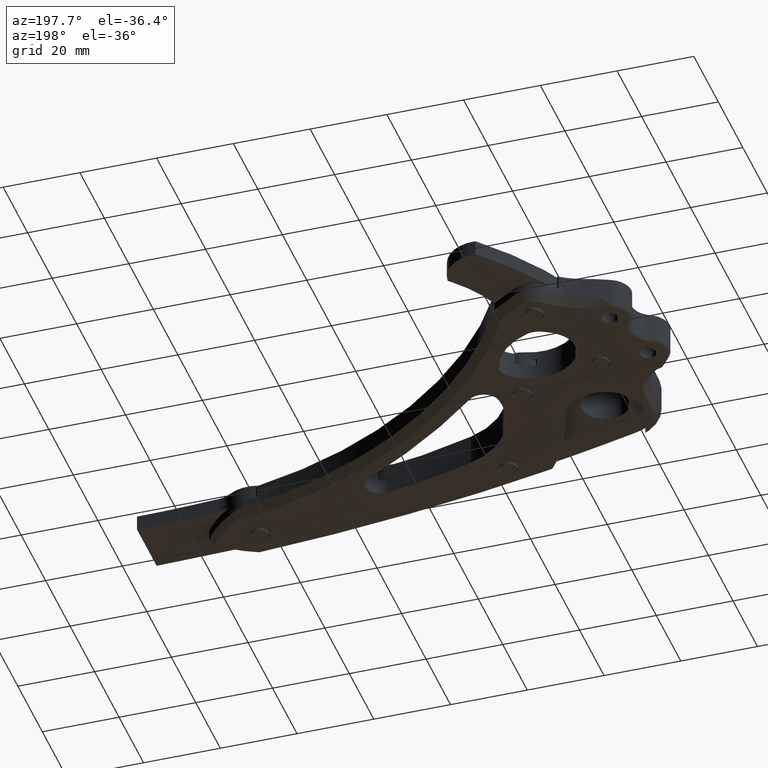
[diagram: clean part render]
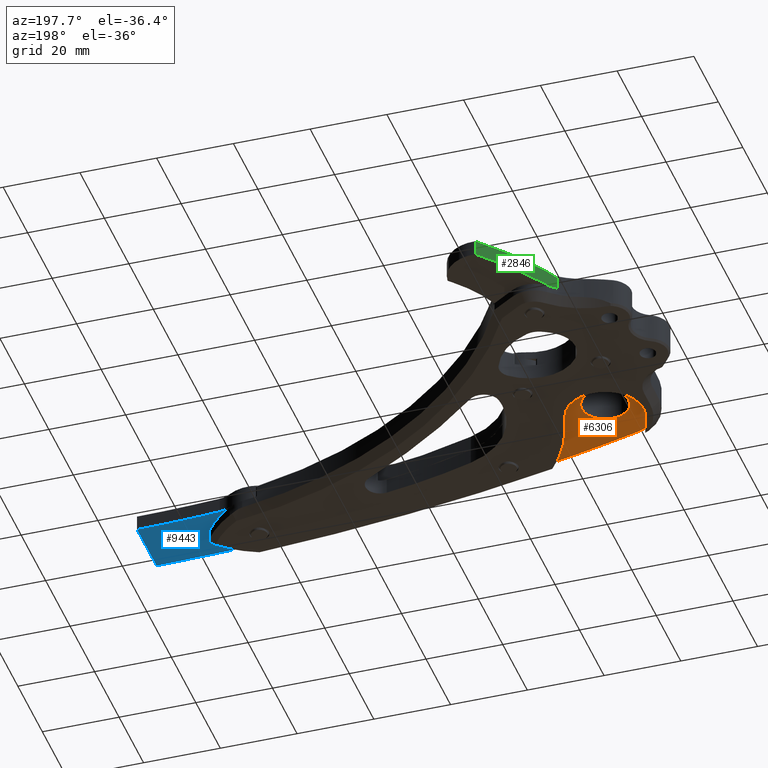
[diagram: same view with three faces highlighted in distinct colors, each labeled with its STEP entity id]
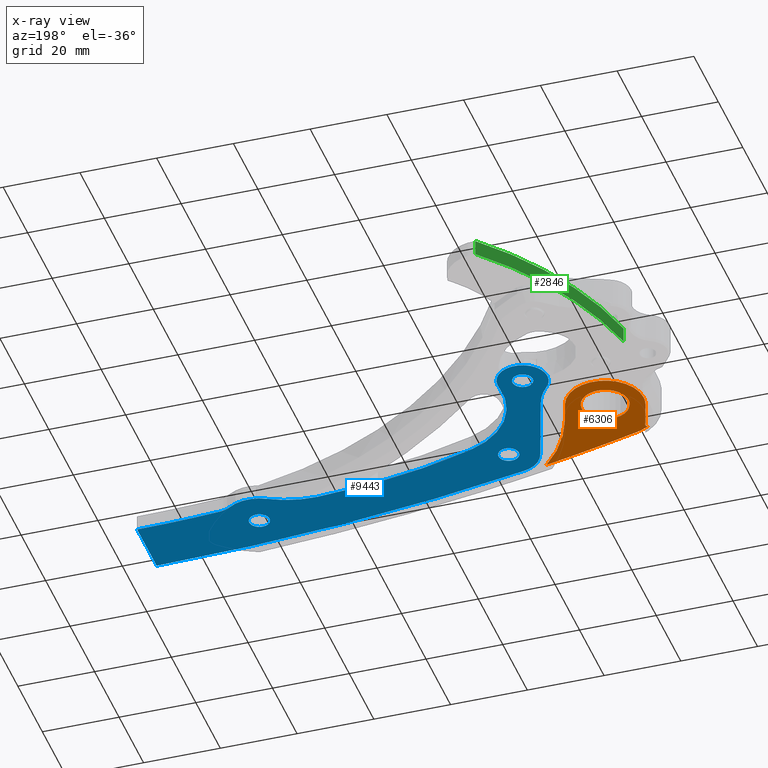
[diagram: x-ray of the same camera — body ghosted, the three highlighted faces saturated]
A machine part, auxiliary view with three faces highlighted in distinct colors.
The next image is the same camera in x-ray (body ghosted, the three faces saturated) — at least one of them is partly hidden behind the body in this view.
Their STEP definitions:

[orange] entity #6306 — the highlighted planar face has unit normal (0, 0, -1).
#3 = AXIS2_PLACEMENT_3D ( 'NONE', #8015, #2750, #7243 ) ;
#106 = VERTEX_POINT ( 'NONE', #9611 ) ;
#174 = LINE ( 'NONE', #439, #3489 ) ;
#179 = PLANE ( 'NONE',  #3609 ) ;
#198 = ORIENTED_EDGE ( 'NONE', *, *, #8634, .T. ) ;
#228 = LINE ( 'NONE', #614, #3995 ) ;
#334 = EDGE_CURVE ( 'NONE', #106, #4261, #9495, .T. ) ;
#353 = EDGE_CURVE ( 'NONE', #9379, #106, #174, .T. ) ;
#439 = CARTESIAN_POINT ( 'NONE',  ( 0.3744316993288013262, 0.1216602340058868803, 0.1377952755905512972 ) ) ;
#445 = EDGE_LOOP ( 'NONE', ( #7776, #198, #4285, #1633, #8875, #1286, #4212, #5405, #6687 ) ) ;
#614 = CARTESIAN_POINT ( 'NONE',  ( -0.3744316993288016038, -0.1216602340058825088, 0.1377952755905512972 ) ) ;
#640 = VERTEX_POINT ( 'NONE', #6355 ) ;
#973 = FACE_BOUND ( 'NONE', #3605, .T. ) ;
#1083 = CARTESIAN_POINT ( 'NONE',  ( -0.3744316993288016038, -0.1216602340058825088, 0.1377952755905512972 ) ) ;
#1238 = DIRECTION ( 'NONE',  ( -1.000000000000000000, 0.0000000000000000000, 0.0000000000000000000 ) ) ;
#1273 = AXIS2_PLACEMENT_3D ( 'NONE', #5564, #1808, #1881 ) ;
#1286 = ORIENTED_EDGE ( 'NONE', *, *, #4424, .T. ) ;
#1366 = DIRECTION ( 'NONE',  ( 0.0000000000000000000, 0.0000000000000000000, -1.000000000000000000 ) ) ;
#1421 = DIRECTION ( 'NONE',  ( 0.0000000000000000000, 0.0000000000000000000, -1.000000000000000000 ) ) ;
#1538 = DIRECTION ( 'NONE',  ( -0.3090169943749412895, 0.9510565162951555296, 0.0000000000000000000 ) ) ;
#1633 = ORIENTED_EDGE ( 'NONE', *, *, #9436, .T. ) ;
#1635 = EDGE_CURVE ( 'NONE', #3416, #2544, #7337, .T. ) ;
#1808 = DIRECTION ( 'NONE',  ( 0.0000000000000000000, 0.0000000000000000000, 1.000000000000000000 ) ) ;
#1881 = DIRECTION ( 'NONE',  ( -1.000000000000000000, 0.0000000000000000000, 0.0000000000000000000 ) ) ;
#1912 = VERTEX_POINT ( 'NONE', #5493 ) ;
#2421 = CARTESIAN_POINT ( 'NONE',  ( 0.8619392570489834426, -0.7576723516187694463, 0.1377952755905512972 ) ) ;
#2425 = CARTESIAN_POINT ( 'NONE',  ( 1.957320660448124139, 0.3461989804992516850, 0.1377952755905512972 ) ) ;
#2544 = VERTEX_POINT ( 'NONE', #8874 ) ;
#2637 = CARTESIAN_POINT ( 'NONE',  ( 0.0000000000000000000, 0.0000000000000000000, 0.1377952755905512972 ) ) ;
#2750 = DIRECTION ( 'NONE',  ( -0.0000000000000000000, -0.0000000000000000000, 1.000000000000000000 ) ) ;
#2791 = DIRECTION ( 'NONE',  ( -1.000000000000000000, -3.388131789017198347E-21, 0.0000000000000000000 ) ) ;
#2860 = AXIS2_PLACEMENT_3D ( 'NONE', #5731, #8339, #2791 ) ;
#2948 = VERTEX_POINT ( 'NONE', #3523 ) ;
#3033 = DIRECTION ( 'NONE',  ( -0.0000000000000000000, 0.0000000000000000000, -1.000000000000000000 ) ) ;
#3359 = VERTEX_POINT ( 'NONE', #1083 ) ;
#3416 = VERTEX_POINT ( 'NONE', #7738 ) ;
#3489 = VECTOR ( 'NONE', #3505, 39.37007874015748143 ) ;
#3505 = DIRECTION ( 'NONE',  ( 0.3090169943749421222, -0.9510565162951553075, 0.0000000000000000000 ) ) ;
#3523 = CARTESIAN_POINT ( 'NONE',  ( -0.2711995675692392416, -0.4393760664298007046, 0.1377952755905512972 ) ) ;
#3605 = EDGE_LOOP ( 'NONE', ( #4074, #9470 ) ) ;
#3609 = AXIS2_PLACEMENT_3D ( 'NONE', #2425, #3033, #9664 ) ;
#3995 = VECTOR ( 'NONE', #1538, 39.37007874015748854 ) ;
#4038 = CIRCLE ( 'NONE', #4610, 19.68503937007875848 ) ;
#4074 = ORIENTED_EDGE ( 'NONE', *, *, #9278, .F. ) ;
#4212 = ORIENTED_EDGE ( 'NONE', *, *, #353, .T. ) ;
#4257 = DIRECTION ( 'NONE',  ( 0.0000000000000000000, 0.0000000000000000000, -1.000000000000000000 ) ) ;
#4261 = VERTEX_POINT ( 'NONE', #9270 ) ;
#4285 = ORIENTED_EDGE ( 'NONE', *, *, #9070, .T. ) ;
#4396 = EDGE_CURVE ( 'NONE', #3359, #640, #6093, .T. ) ;
#4424 = EDGE_CURVE ( 'NONE', #640, #9379, #4573, .T. ) ;
#4573 = CIRCLE ( 'NONE', #8790, 0.3937007874015751030 ) ;
#4603 = CIRCLE ( 'NONE', #3, 0.01968503937007875723 ) ;
#4610 = AXIS2_PLACEMENT_3D ( 'NONE', #8938, #1421, #5971 ) ;
#4818 = AXIS2_PLACEMENT_3D ( 'NONE', #8944, #5019, #7097 ) ;
#5019 = DIRECTION ( 'NONE',  ( 0.0000000000000000000, 0.0000000000000000000, -1.000000000000000000 ) ) ;
#5114 = AXIS2_PLACEMENT_3D ( 'NONE', #2421, #5497, #1238 ) ;
#5405 = ORIENTED_EDGE ( 'NONE', *, *, #334, .T. ) ;
#5493 = CARTESIAN_POINT ( 'NONE',  ( 0.8577675642549055235, -0.7769102765129314303, 0.1377952755905512972 ) ) ;
#5497 = DIRECTION ( 'NONE',  ( -0.0000000000000000000, -0.0000000000000000000, 1.000000000000000000 ) ) ;
#5547 = CIRCLE ( 'NONE', #5114, 0.01968503937007875723 ) ;
#5564 = CARTESIAN_POINT ( 'NONE',  ( 1.957320660448124139, 0.3461989804992516850, 0.1377952755905512972 ) ) ;
#5731 = CARTESIAN_POINT ( 'NONE',  ( 0.0000000000000000000, 0.0000000000000000000, 0.1377952755905512972 ) ) ;
#5767 = VERTEX_POINT ( 'NONE', #6400 ) ;
#5921 = EDGE_CURVE ( 'NONE', #1912, #9583, #4038, .T. ) ;
#5971 = DIRECTION ( 'NONE',  ( -1.000000000000000000, 0.0000000000000000000, 0.0000000000000000000 ) ) ;
#6093 = CIRCLE ( 'NONE', #2860, 0.3937007874015751030 ) ;
#6306 = ADVANCED_FACE ( 'NONE', ( #973, #6981 ), #179, .T. ) ;
#6332 = DIRECTION ( 'NONE',  ( 0.0000000000000000000, 0.0000000000000000000, -1.000000000000000000 ) ) ;
#6355 = CARTESIAN_POINT ( 'NONE',  ( -0.3937007874015747699, -1.333910153156377246E-21, 0.1377952755905512972 ) ) ;
#6400 = CARTESIAN_POINT ( 'NONE',  ( -0.3006589729999643024, -0.4619575625052826928, 0.1377952755905512972 ) ) ;
#6414 = CARTESIAN_POINT ( 'NONE',  ( 0.0000000000000000000, 0.0000000000000000000, 0.1377952755905512972 ) ) ;
#6687 = ORIENTED_EDGE ( 'NONE', *, *, #8379, .T. ) ;
#6981 = FACE_OUTER_BOUND ( 'NONE', #445, .T. ) ;
#7097 = DIRECTION ( 'NONE',  ( -1.000000000000000000, -3.388131789017198723E-21, 0.0000000000000000000 ) ) ;
#7152 = DIRECTION ( 'NONE',  ( -1.000000000000000000, -3.388131789017198723E-21, 0.0000000000000000000 ) ) ;
#7243 = DIRECTION ( 'NONE',  ( -1.000000000000000000, 0.0000000000000000000, 0.0000000000000000000 ) ) ;
#7337 = CIRCLE ( 'NONE', #4818, 0.2401574803149608139 ) ;
#7738 = CARTESIAN_POINT ( 'NONE',  ( -0.2401574803149606196, 2.940999527070757363E-17, 0.1377952755905512972 ) ) ;
#7776 = ORIENTED_EDGE ( 'NONE', *, *, #5921, .T. ) ;
#8015 = CARTESIAN_POINT ( 'NONE',  ( -0.2899211525356799046, -0.4454590781300942215, 0.1377952755905512972 ) ) ;
#8150 = DIRECTION ( 'NONE',  ( -1.000000000000000000, -3.388131789017198347E-21, 0.0000000000000000000 ) ) ;
#8291 = AXIS2_PLACEMENT_3D ( 'NONE', #2637, #6332, #8576 ) ;
#8339 = DIRECTION ( 'NONE',  ( 0.0000000000000000000, 0.0000000000000000000, -1.000000000000000000 ) ) ;
#8379 = EDGE_CURVE ( 'NONE', #4261, #1912, #5547, .T. ) ;
#8392 = CIRCLE ( 'NONE', #8291, 0.5511811023622052996 ) ;
#8576 = DIRECTION ( 'NONE',  ( -1.000000000000000000, -3.388131789017198723E-21, 0.0000000000000000000 ) ) ;
#8607 = AXIS2_PLACEMENT_3D ( 'NONE', #6414, #1366, #7152 ) ;
#8634 = EDGE_CURVE ( 'NONE', #9583, #5767, #8392, .T. ) ;
#8790 = AXIS2_PLACEMENT_3D ( 'NONE', #9398, #4257, #8150 ) ;
#8874 = CARTESIAN_POINT ( 'NONE',  ( 0.2401574803149606196, 8.136851934253901838E-22, 0.1377952755905512972 ) ) ;
#8875 = ORIENTED_EDGE ( 'NONE', *, *, #4396, .T. ) ;
#8938 = CARTESIAN_POINT ( 'NONE',  ( 5.029460358332304537, 18.46101461764844487, 0.1377952755905512972 ) ) ;
#8944 = CARTESIAN_POINT ( 'NONE',  ( 0.0000000000000000000, 0.0000000000000000000, 0.1377952755905512972 ) ) ;
#9006 = CARTESIAN_POINT ( 'NONE',  ( 0.3744316993288013262, 0.1216602340058868803, 0.1377952755905512972 ) ) ;
#9070 = EDGE_CURVE ( 'NONE', #5767, #2948, #4603, .T. ) ;
#9091 = CARTESIAN_POINT ( 'NONE',  ( -0.1448815623168710487, -0.5317987782064161895, 0.1377952755905512972 ) ) ;
#9270 = CARTESIAN_POINT ( 'NONE',  ( 0.8480736696641871797, -0.7716454064557027870, 0.1377952755905512972 ) ) ;
#9278 = EDGE_CURVE ( 'NONE', #2544, #3416, #9431, .T. ) ;
#9379 = VERTEX_POINT ( 'NONE', #9006 ) ;
#9398 = CARTESIAN_POINT ( 'NONE',  ( 0.0000000000000000000, 0.0000000000000000000, 0.1377952755905512972 ) ) ;
#9431 = CIRCLE ( 'NONE', #8607, 0.2401574803149608139 ) ;
#9436 = EDGE_CURVE ( 'NONE', #2948, #3359, #228, .T. ) ;
#9470 = ORIENTED_EDGE ( 'NONE', *, *, #1635, .F. ) ;
#9495 = CIRCLE ( 'NONE', #1273, 1.574803149606300412 ) ;
#9583 = VERTEX_POINT ( 'NONE', #9091 ) ;
#9611 = CARTESIAN_POINT ( 'NONE',  ( 0.4595938631329188895, -0.1404419555242772677, 0.1377952755905512972 ) ) ;
#9664 = DIRECTION ( 'NONE',  ( -1.000000000000000000, -3.388131789017198347E-21, 0.0000000000000000000 ) ) ;

[blue] entity #9443 — the highlighted planar face has unit normal (0, 0, -1).
#2 = FACE_OUTER_BOUND ( 'NONE', #8122, .T. ) ;
#12 = CARTESIAN_POINT ( 'NONE',  ( 5.039771616311220725, 11.21441482659597355, 0.07874015748031502893 ) ) ;
#156 = DIRECTION ( 'NONE',  ( -1.000000000000000000, 0.0000000000000000000, 0.0000000000000000000 ) ) ;
#227 = DIRECTION ( 'NONE',  ( -0.0000000000000000000, -0.0000000000000000000, 1.000000000000000000 ) ) ;
#240 = DIRECTION ( 'NONE',  ( 0.0000000000000000000, 0.0000000000000000000, -1.000000000000000000 ) ) ;
#272 = DIRECTION ( 'NONE',  ( 1.000000000000000000, 0.0000000000000000000, 0.0000000000000000000 ) ) ;
#330 = DIRECTION ( 'NONE',  ( -0.0000000000000000000, -0.0000000000000000000, 1.000000000000000000 ) ) ;
#371 = CARTESIAN_POINT ( 'NONE',  ( 4.153562445621881594, -0.3264127545579053602, 0.07874015748031502893 ) ) ;
#502 = AXIS2_PLACEMENT_3D ( 'NONE', #5464, #7894, #8591 ) ;
#503 = DIRECTION ( 'NONE',  ( 0.0000000000000000000, 0.0000000000000000000, -1.000000000000000000 ) ) ;
#569 = DIRECTION ( 'NONE',  ( 0.0000000000000000000, 0.0000000000000000000, -1.000000000000000000 ) ) ;
#612 = CARTESIAN_POINT ( 'NONE',  ( 1.095826336180402150, -0.8269945408872719783, 0.07874015748031502893 ) ) ;
#623 = CARTESIAN_POINT ( 'NONE',  ( 0.7629952931989970599, 0.5923259528790497663, 0.07874015748031502893 ) ) ;
#649 = ORIENTED_EDGE ( 'NONE', *, *, #3704, .F. ) ;
#652 = CARTESIAN_POINT ( 'NONE',  ( 0.4683837045600568461, 0.4212095664917691051, 0.07874015748031502893 ) ) ;
#687 = ORIENTED_EDGE ( 'NONE', *, *, #1075, .F. ) ;
#713 = EDGE_CURVE ( 'NONE', #4402, #6791, #5362, .T. ) ;
#737 = EDGE_CURVE ( 'NONE', #8461, #6265, #7372, .T. ) ;
#756 = DIRECTION ( 'NONE',  ( 1.000000000000000000, 0.0000000000000000000, 0.0000000000000000000 ) ) ;
#781 = AXIS2_PLACEMENT_3D ( 'NONE', #5984, #6543, #272 ) ;
#815 = DIRECTION ( 'NONE',  ( -0.0000000000000000000, -0.0000000000000000000, 1.000000000000000000 ) ) ;
#839 = CARTESIAN_POINT ( 'NONE',  ( 1.157573939414331843, -0.5242240083958442654, 0.07874015748031502893 ) ) ;
#972 = CARTESIAN_POINT ( 'NONE',  ( 3.300342611646471802, 5.284223087146219910, 0.07874015748031502893 ) ) ;
#983 = ORIENTED_EDGE ( 'NONE', *, *, #6099, .F. ) ;
#1062 = VECTOR ( 'NONE', #5525, 39.37007874015748854 ) ;
#1064 = DIRECTION ( 'NONE',  ( 1.000000000000000000, 0.0000000000000000000, 0.0000000000000000000 ) ) ;
#1075 = EDGE_CURVE ( 'NONE', #1910, #4050, #3348, .T. ) ;
#1133 = EDGE_LOOP ( 'NONE', ( #6721, #8336 ) ) ;
#1157 = EDGE_CURVE ( 'NONE', #4758, #4402, #6389, .T. ) ;
#1174 = CARTESIAN_POINT ( 'NONE',  ( 4.135476544179243596, -0.5619398480508436267, 0.07874015748031502893 ) ) ;
#1210 = AXIS2_PLACEMENT_3D ( 'NONE', #839, #5255, #4330 ) ;
#1303 = CARTESIAN_POINT ( 'NONE',  ( 3.178165895297007104, 0.3070171716017278118, 0.07874015748031502893 ) ) ;
#1385 = EDGE_CURVE ( 'NONE', #6265, #4758, #4981, .T. ) ;
#1392 = EDGE_CURVE ( 'NONE', #9245, #7042, #7224, .T. ) ;
#1405 = AXIS2_PLACEMENT_3D ( 'NONE', #972, #5641, #1502 ) ;
#1502 = DIRECTION ( 'NONE',  ( 1.000000000000000000, 0.0000000000000000000, 0.0000000000000000000 ) ) ;
#1546 = CARTESIAN_POINT ( 'NONE',  ( 3.631300535526105211, -0.5014625227949655040, 0.07874015748031502893 ) ) ;
#1627 = ORIENTED_EDGE ( 'NONE', *, *, #8525, .F. ) ;
#1698 = DIRECTION ( 'NONE',  ( 0.0000000000000000000, 0.0000000000000000000, -1.000000000000000000 ) ) ;
#1784 = CIRCLE ( 'NONE', #4481, 0.9268065701252465871 ) ;
#1831 = AXIS2_PLACEMENT_3D ( 'NONE', #8438, #3757, #1907 ) ;
#1834 = ORIENTED_EDGE ( 'NONE', *, *, #5107, .F. ) ;
#1865 = DIRECTION ( 'NONE',  ( -0.0000000000000000000, -0.0000000000000000000, 1.000000000000000000 ) ) ;
#1907 = DIRECTION ( 'NONE',  ( 1.000000000000000000, 0.0000000000000000000, 0.0000000000000000000 ) ) ;
#1910 = VERTEX_POINT ( 'NONE', #3738 ) ;
#2004 = CARTESIAN_POINT ( 'NONE',  ( 0.6586645845375798114, 0.5923259528790497663, 0.07874015748031502893 ) ) ;
#2008 = FACE_BOUND ( 'NONE', #4900, .T. ) ;
#2041 = CARTESIAN_POINT ( 'NONE',  ( 3.809921704141099319, -0.8201571777470070268, 0.07874015748031502893 ) ) ;
#2066 = DIRECTION ( 'NONE',  ( 1.000000000000000000, 0.0000000000000000000, 0.0000000000000000000 ) ) ;
#2070 = EDGE_CURVE ( 'NONE', #5073, #6270, #1784, .T. ) ;
#2189 = EDGE_CURVE ( 'NONE', #7851, #8461, #8858, .T. ) ;
#2269 = FACE_BOUND ( 'NONE', #1133, .T. ) ;
#2322 = DIRECTION ( 'NONE',  ( -0.0000000000000000000, -0.0000000000000000000, 1.000000000000000000 ) ) ;
#2331 = CARTESIAN_POINT ( 'NONE',  ( 4.992926056778694388, -1.223990738861789662, 0.07874015748031502893 ) ) ;
#2356 = CARTESIAN_POINT ( 'NONE',  ( 0.4027590727265552561, 0.5923259528790497663, 0.07874015748031502893 ) ) ;
#2661 = EDGE_CURVE ( 'NONE', #4190, #3393, #7795, .T. ) ;
#2689 = ORIENTED_EDGE ( 'NONE', *, *, #737, .F. ) ;
#2731 = LINE ( 'NONE', #6097, #4483 ) ;
#2837 = CARTESIAN_POINT ( 'NONE',  ( 0.6586645845375798114, 0.5923259528790497663, 0.07874015748031502893 ) ) ;
#2998 = CIRCLE ( 'NONE', #6349, 0.2362204724409461831 ) ;
#3042 = ORIENTED_EDGE ( 'NONE', *, *, #1385, .F. ) ;
#3107 = PLANE ( 'NONE',  #7137 ) ;
#3186 = CARTESIAN_POINT ( 'NONE',  ( 3.155422194284374093, -0.6195102929084036480, 0.07874015748031502893 ) ) ;
#3312 = CIRCLE ( 'NONE', #1210, 0.1043307086614171791 ) ;
#3320 = AXIS2_PLACEMENT_3D ( 'NONE', #4166, #1865, #4894 ) ;
#3348 = CIRCLE ( 'NONE', #3320, 0.3090028508772659777 ) ;
#3393 = VERTEX_POINT ( 'NONE', #3543 ) ;
#3424 = ORIENTED_EDGE ( 'NONE', *, *, #2070, .F. ) ;
#3425 = AXIS2_PLACEMENT_3D ( 'NONE', #12, #9746, #3716 ) ;
#3543 = CARTESIAN_POINT ( 'NONE',  ( 3.705590995479682181, -0.8201571777470070268, 0.07874015748031502893 ) ) ;
#3669 = AXIS2_PLACEMENT_3D ( 'NONE', #2004, #330, #1064 ) ;
#3704 = EDGE_CURVE ( 'NONE', #4050, #6397, #4227, .T. ) ;
#3716 = DIRECTION ( 'NONE',  ( 1.000000000000000000, 0.0000000000000000000, 0.0000000000000000000 ) ) ;
#3738 = CARTESIAN_POINT ( 'NONE',  ( 0.8636947645337276214, -0.6197111406272253209, 0.07874015748031502893 ) ) ;
#3757 = DIRECTION ( 'NONE',  ( -0.0000000000000000000, -0.0000000000000000000, 1.000000000000000000 ) ) ;
#3844 = CARTESIAN_POINT ( 'NONE',  ( 0.5990907189260816779, 0.1946563744094113590, 0.07874015748031502893 ) ) ;
#3845 = EDGE_CURVE ( 'NONE', #4890, #7361, #3312, .T. ) ;
#3893 = CARTESIAN_POINT ( 'NONE',  ( 1.053243230752914705, -0.5242240083958442654, 0.07874015748031502893 ) ) ;
#3919 = CARTESIAN_POINT ( 'NONE',  ( 0.9126951216396621547, 0.5614048080928358830, 0.07874015748031502893 ) ) ;
#4007 = VERTEX_POINT ( 'NONE', #4200 ) ;
#4027 = CARTESIAN_POINT ( 'NONE',  ( 0.6586645845375798114, 0.5923259528790497663, 0.07874015748031502893 ) ) ;
#4050 = VERTEX_POINT ( 'NONE', #612 ) ;
#4155 = CIRCLE ( 'NONE', #9596, 0.1043307086614173040 ) ;
#4166 = CARTESIAN_POINT ( 'NONE',  ( 1.157573939414331843, -0.5242240083958442654, 0.07874015748031502893 ) ) ;
#4190 = VERTEX_POINT ( 'NONE', #7896 ) ;
#4200 = CARTESIAN_POINT ( 'NONE',  ( 4.018621303370757403, -0.5202967397866653521, 0.07874015748031502893 ) ) ;
#4227 = CIRCLE ( 'NONE', #7208, 19.68503937007874072 ) ;
#4271 = DIRECTION ( 'NONE',  ( -1.000000000000000000, 0.0000000000000000000, 0.0000000000000000000 ) ) ;
#4300 = VERTEX_POINT ( 'NONE', #1174 ) ;
#4330 = DIRECTION ( 'NONE',  ( -1.000000000000000000, 0.0000000000000000000, 0.0000000000000000000 ) ) ;
#4336 = DIRECTION ( 'NONE',  ( 0.0000000000000000000, 0.0000000000000000000, -1.000000000000000000 ) ) ;
#4399 = ORIENTED_EDGE ( 'NONE', *, *, #713, .F. ) ;
#4402 = VERTEX_POINT ( 'NONE', #652 ) ;
#4431 = CARTESIAN_POINT ( 'NONE',  ( 3.185243768092931305, 0.1542481019844824108, 0.07874015748031502893 ) ) ;
#4481 = AXIS2_PLACEMENT_3D ( 'NONE', #1303, #569, #8547 ) ;
#4483 = VECTOR ( 'NONE', #8994, 39.37007874015748854 ) ;
#4523 = VERTEX_POINT ( 'NONE', #4694 ) ;
#4525 = ORIENTED_EDGE ( 'NONE', *, *, #6147, .F. ) ;
#4694 = CARTESIAN_POINT ( 'NONE',  ( 4.994090594514323023, -0.5965204557940610997, 0.07874015748031502893 ) ) ;
#4758 = VERTEX_POINT ( 'NONE', #2356 ) ;
#4890 = VERTEX_POINT ( 'NONE', #6273 ) ;
#4894 = DIRECTION ( 'NONE',  ( 1.000000000000000000, 0.0000000000000000000, 0.0000000000000000000 ) ) ;
#4900 = EDGE_LOOP ( 'NONE', ( #6623, #983 ) ) ;
#4908 = DIRECTION ( 'NONE',  ( 1.000000000000000000, 0.0000000000000000000, 0.0000000000000000000 ) ) ;
#4912 = EDGE_CURVE ( 'NONE', #3393, #4190, #8675, .T. ) ;
#4934 = AXIS2_PLACEMENT_3D ( 'NONE', #6794, #1698, #8863 ) ;
#4981 = CIRCLE ( 'NONE', #8920, 0.2559055118110245552 ) ;
#5046 = DIRECTION ( 'NONE',  ( 1.000000000000000000, 0.0000000000000000000, 0.0000000000000000000 ) ) ;
#5073 = VERTEX_POINT ( 'NONE', #1546 ) ;
#5107 = EDGE_CURVE ( 'NONE', #4007, #5073, #7493, .T. ) ;
#5255 = DIRECTION ( 'NONE',  ( 0.0000000000000000000, 0.0000000000000000000, -1.000000000000000000 ) ) ;
#5293 = DIRECTION ( 'NONE',  ( -1.000000000000000000, 0.0000000000000000000, 0.0000000000000000000 ) ) ;
#5362 = CIRCLE ( 'NONE', #4934, 0.6299212598425188991 ) ;
#5464 = CARTESIAN_POINT ( 'NONE',  ( 1.157573939414331843, -0.5242240083958442654, 0.07874015748031502893 ) ) ;
#5525 = DIRECTION ( 'NONE',  ( 0.3090169943749415116, -0.9510565162951555296, 0.0000000000000000000 ) ) ;
#5570 = ORIENTED_EDGE ( 'NONE', *, *, #1157, .F. ) ;
#5630 = AXIS2_PLACEMENT_3D ( 'NONE', #2041, #2322, #756 ) ;
#5641 = DIRECTION ( 'NONE',  ( 0.0000000000000000000, 0.0000000000000000000, -1.000000000000000000 ) ) ;
#5684 = CARTESIAN_POINT ( 'NONE',  ( 1.486064258894565171, -0.3356936212112466844, 0.07874015748031502893 ) ) ;
#5984 = CARTESIAN_POINT ( 'NONE',  ( 1.743045547613837343, 0.4603327636144783908, 0.07874015748031502893 ) ) ;
#6011 = FACE_BOUND ( 'NONE', #8802, .T. ) ;
#6097 = CARTESIAN_POINT ( 'NONE',  ( 4.994090594514324799, -0.5965204557940632091, 0.07874015748031502893 ) ) ;
#6099 = EDGE_CURVE ( 'NONE', #7042, #9245, #4155, .T. ) ;
#6147 = EDGE_CURVE ( 'NONE', #6270, #7851, #9692, .T. ) ;
#6265 = VERTEX_POINT ( 'NONE', #7041 ) ;
#6270 = VERTEX_POINT ( 'NONE', #3186 ) ;
#6273 = CARTESIAN_POINT ( 'NONE',  ( 1.261904648075749202, -0.5242240083958442654, 0.07874015748031502893 ) ) ;
#6293 = AXIS2_PLACEMENT_3D ( 'NONE', #8305, #4336, #4271 ) ;
#6349 = AXIS2_PLACEMENT_3D ( 'NONE', #371, #7209, #4908 ) ;
#6370 = EDGE_CURVE ( 'NONE', #4523, #4300, #8299, .T. ) ;
#6382 = CARTESIAN_POINT ( 'NONE',  ( 0.5543338758761624518, 0.5923259528790497663, 0.07874015748031502893 ) ) ;
#6389 = CIRCLE ( 'NONE', #3669, 0.2559055118110245552 ) ;
#6397 = VERTEX_POINT ( 'NONE', #2331 ) ;
#6543 = DIRECTION ( 'NONE',  ( 0.0000000000000000000, 0.0000000000000000000, -1.000000000000000000 ) ) ;
#6623 = ORIENTED_EDGE ( 'NONE', *, *, #1392, .F. ) ;
#6678 = DIRECTION ( 'NONE',  ( 0.0000000000000000000, 0.0000000000000000000, -1.000000000000000000 ) ) ;
#6721 = ORIENTED_EDGE ( 'NONE', *, *, #4912, .F. ) ;
#6791 = VERTEX_POINT ( 'NONE', #3844 ) ;
#6794 = CARTESIAN_POINT ( 'NONE',  ( 0.0000000000000000000, 0.0000000000000000000, 0.07874015748031502893 ) ) ;
#6802 = DIRECTION ( 'NONE',  ( 1.000000000000000000, 0.0000000000000000000, 0.0000000000000000000 ) ) ;
#6862 = EDGE_CURVE ( 'NONE', #4300, #4007, #2998, .T. ) ;
#6946 = CARTESIAN_POINT ( 'NONE',  ( 3.809921704141099319, -0.8201571777470070268, 0.07874015748031502893 ) ) ;
#6950 = ORIENTED_EDGE ( 'NONE', *, *, #6370, .F. ) ;
#7028 = ORIENTED_EDGE ( 'NONE', *, *, #6862, .F. ) ;
#7041 = CARTESIAN_POINT ( 'NONE',  ( 0.9145700963486043111, 0.5923259528790497663, 0.07874015748031502893 ) ) ;
#7042 = VERTEX_POINT ( 'NONE', #623 ) ;
#7137 = AXIS2_PLACEMENT_3D ( 'NONE', #4431, #8977, #6802 ) ;
#7208 = AXIS2_PLACEMENT_3D ( 'NONE', #8114, #227, #5046 ) ;
#7209 = DIRECTION ( 'NONE',  ( 0.0000000000000000000, 0.0000000000000000000, -1.000000000000000000 ) ) ;
#7224 = CIRCLE ( 'NONE', #7341, 0.1043307086614173040 ) ;
#7341 = AXIS2_PLACEMENT_3D ( 'NONE', #8038, #503, #156 ) ;
#7361 = VERTEX_POINT ( 'NONE', #3893 ) ;
#7372 = CIRCLE ( 'NONE', #1831, 0.2559055118110245552 ) ;
#7444 = DIRECTION ( 'NONE',  ( -1.000000000000000000, 0.0000000000000000000, 0.0000000000000000000 ) ) ;
#7493 = CIRCLE ( 'NONE', #5630, 0.3653379325670792488 ) ;
#7612 = AXIS2_PLACEMENT_3D ( 'NONE', #6946, #240, #5293 ) ;
#7641 = ORIENTED_EDGE ( 'NONE', *, *, #9553, .F. ) ;
#7795 = CIRCLE ( 'NONE', #6293, 0.1043307086614173040 ) ;
#7851 = VERTEX_POINT ( 'NONE', #5684 ) ;
#7894 = DIRECTION ( 'NONE',  ( 0.0000000000000000000, 0.0000000000000000000, -1.000000000000000000 ) ) ;
#7896 = CARTESIAN_POINT ( 'NONE',  ( 3.914252412802516901, -0.8201571777470070268, 0.07874015748031502893 ) ) ;
#7968 = ORIENTED_EDGE ( 'NONE', *, *, #3845, .F. ) ;
#8038 = CARTESIAN_POINT ( 'NONE',  ( 0.6586645845375798114, 0.5923259528790497663, 0.07874015748031502893 ) ) ;
#8098 = ORIENTED_EDGE ( 'NONE', *, *, #2189, .F. ) ;
#8114 = CARTESIAN_POINT ( 'NONE',  ( 5.029459948999931207, 18.46101472916562258, 0.07874015748031502893 ) ) ;
#8122 = EDGE_LOOP ( 'NONE', ( #2689, #8098, #4525, #3424, #1834, #7028, #6950, #8439, #649, #687, #7641, #4399, #5570, #3042 ) ) ;
#8169 = CIRCLE ( 'NONE', #502, 0.1043307086614171791 ) ;
#8299 = CIRCLE ( 'NONE', #3425, 11.81102362204724976 ) ;
#8305 = CARTESIAN_POINT ( 'NONE',  ( 3.809921704141099319, -0.8201571777470070268, 0.07874015748031502893 ) ) ;
#8336 = ORIENTED_EDGE ( 'NONE', *, *, #2661, .F. ) ;
#8438 = CARTESIAN_POINT ( 'NONE',  ( 0.6586645845375798114, 0.5923259528790497663, 0.07874015748031502893 ) ) ;
#8439 = ORIENTED_EDGE ( 'NONE', *, *, #9387, .F. ) ;
#8461 = VERTEX_POINT ( 'NONE', #3919 ) ;
#8525 = EDGE_CURVE ( 'NONE', #7361, #4890, #8169, .T. ) ;
#8547 = DIRECTION ( 'NONE',  ( 1.000000000000000000, 0.0000000000000000000, 0.0000000000000000000 ) ) ;
#8591 = DIRECTION ( 'NONE',  ( -1.000000000000000000, 0.0000000000000000000, 0.0000000000000000000 ) ) ;
#8675 = CIRCLE ( 'NONE', #7612, 0.1043307086614173040 ) ;
#8802 = EDGE_LOOP ( 'NONE', ( #1627, #7968 ) ) ;
#8858 = CIRCLE ( 'NONE', #781, 0.8364791617790193756 ) ;
#8863 = DIRECTION ( 'NONE',  ( 1.000000000000000000, 0.0000000000000000000, 0.0000000000000000000 ) ) ;
#8920 = AXIS2_PLACEMENT_3D ( 'NONE', #2837, #815, #2066 ) ;
#8977 = DIRECTION ( 'NONE',  ( 0.0000000000000000000, 0.0000000000000000000, -1.000000000000000000 ) ) ;
#8994 = DIRECTION ( 'NONE',  ( 0.001855921724837538474, 0.9999982777757925323, 0.0000000000000000000 ) ) ;
#9075 = LINE ( 'NONE', #9730, #1062 ) ;
#9245 = VERTEX_POINT ( 'NONE', #6382 ) ;
#9387 = EDGE_CURVE ( 'NONE', #6397, #4523, #2731, .T. ) ;
#9443 = ADVANCED_FACE ( 'NONE', ( #2, #2269, #6011, #2008 ), #3107, .T. ) ;
#9553 = EDGE_CURVE ( 'NONE', #6791, #1910, #9075, .T. ) ;
#9596 = AXIS2_PLACEMENT_3D ( 'NONE', #4027, #6678, #7444 ) ;
#9692 = CIRCLE ( 'NONE', #1405, 5.905511811023629321 ) ;
#9730 = CARTESIAN_POINT ( 'NONE',  ( 0.5990907189260816779, 0.1946563744094113590, 0.07874015748031502893 ) ) ;
#9746 = DIRECTION ( 'NONE',  ( 0.0000000000000000000, 0.0000000000000000000, -1.000000000000000000 ) ) ;

[green] entity #2846 — the highlighted cylindrical surface (partial cylindrical patch) has radius 95 mm, axis along (0, 0, -1).
#86 = CARTESIAN_POINT ( 'NONE',  ( 0.4635873222311537312, 2.719665059957394160, 0.07874015748031502893 ) ) ;
#108 = ORIENTED_EDGE ( 'NONE', *, *, #9566, .T. ) ;
#470 = DIRECTION ( 'NONE',  ( 0.0000000000000000000, 0.0000000000000000000, -1.000000000000000000 ) ) ;
#577 = CIRCLE ( 'NONE', #5747, 3.740157480314960647 ) ;
#717 = AXIS2_PLACEMENT_3D ( 'NONE', #724, #8062, #6851 ) ;
#724 = CARTESIAN_POINT ( 'NONE',  ( 3.185243768092931305, 0.1542481019844824108, 0.2362204724409451007 ) ) ;
#967 = VERTEX_POINT ( 'NONE', #86 ) ;
#1649 = CYLINDRICAL_SURFACE ( 'NONE', #717, 3.740157480314960647 ) ;
#2244 = LINE ( 'NONE', #5347, #3971 ) ;
#2374 = FACE_OUTER_BOUND ( 'NONE', #3274, .T. ) ;
#2672 = VERTEX_POINT ( 'NONE', #4827 ) ;
#2846 = ADVANCED_FACE ( 'NONE', ( #2374 ), #1649, .T. ) ;
#2866 = CARTESIAN_POINT ( 'NONE',  ( -0.4782491004236224530, 0.9076390893770238666, 0.07874015748031502893 ) ) ;
#3274 = EDGE_LOOP ( 'NONE', ( #8689, #4171, #7813, #108 ) ) ;
#3737 = CARTESIAN_POINT ( 'NONE',  ( 0.4635873222311537312, 2.719665059957394160, 0.2362204724409451007 ) ) ;
#3880 = EDGE_CURVE ( 'NONE', #967, #7903, #577, .T. ) ;
#3971 = VECTOR ( 'NONE', #470, 39.37007874015748143 ) ;
#4141 = EDGE_CURVE ( 'NONE', #2672, #7903, #2244, .T. ) ;
#4171 = ORIENTED_EDGE ( 'NONE', *, *, #4141, .F. ) ;
#4535 = AXIS2_PLACEMENT_3D ( 'NONE', #7076, #7809, #6259 ) ;
#4827 = CARTESIAN_POINT ( 'NONE',  ( -0.4782491004236224530, 0.9076390893770238666, 0.2362204724409451007 ) ) ;
#5083 = CIRCLE ( 'NONE', #4535, 3.740157480314960647 ) ;
#5085 = DIRECTION ( 'NONE',  ( 0.0000000000000000000, 0.0000000000000000000, -1.000000000000000000 ) ) ;
#5347 = CARTESIAN_POINT ( 'NONE',  ( -0.4782491004236224530, 0.9076390893770238666, 0.2362204724409451007 ) ) ;
#5747 = AXIS2_PLACEMENT_3D ( 'NONE', #7854, #8913, #5978 ) ;
#5978 = DIRECTION ( 'NONE',  ( 1.000000000000000000, 0.0000000000000000000, 0.0000000000000000000 ) ) ;
#6259 = DIRECTION ( 'NONE',  ( 1.000000000000000000, 0.0000000000000000000, 0.0000000000000000000 ) ) ;
#6840 = VECTOR ( 'NONE', #5085, 39.37007874015748143 ) ;
#6851 = DIRECTION ( 'NONE',  ( 1.000000000000000000, 0.0000000000000000000, 0.0000000000000000000 ) ) ;
#7076 = CARTESIAN_POINT ( 'NONE',  ( 3.185243768092931305, 0.1542481019844824108, 0.2362204724409451007 ) ) ;
#7355 = CARTESIAN_POINT ( 'NONE',  ( 0.4635873222311537312, 2.719665059957394160, 0.2362204724409451007 ) ) ;
#7809 = DIRECTION ( 'NONE',  ( -0.0000000000000000000, -0.0000000000000000000, 1.000000000000000000 ) ) ;
#7813 = ORIENTED_EDGE ( 'NONE', *, *, #8999, .F. ) ;
#7854 = CARTESIAN_POINT ( 'NONE',  ( 3.185243768092931305, 0.1542481019844824108, 0.07874015748031502893 ) ) ;
#7903 = VERTEX_POINT ( 'NONE', #2866 ) ;
#8062 = DIRECTION ( 'NONE',  ( 0.0000000000000000000, 0.0000000000000000000, -1.000000000000000000 ) ) ;
#8689 = ORIENTED_EDGE ( 'NONE', *, *, #3880, .T. ) ;
#8913 = DIRECTION ( 'NONE',  ( -0.0000000000000000000, -0.0000000000000000000, 1.000000000000000000 ) ) ;
#8999 = EDGE_CURVE ( 'NONE', #9617, #2672, #5083, .T. ) ;
#9544 = LINE ( 'NONE', #3737, #6840 ) ;
#9566 = EDGE_CURVE ( 'NONE', #9617, #967, #9544, .T. ) ;
#9617 = VERTEX_POINT ( 'NONE', #7355 ) ;